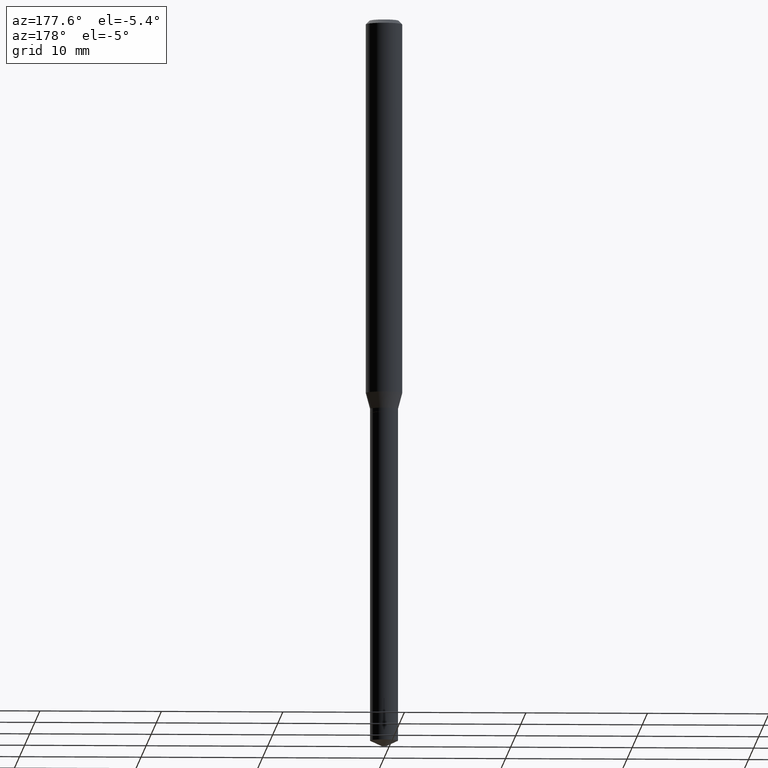
[diagram: clean part render]
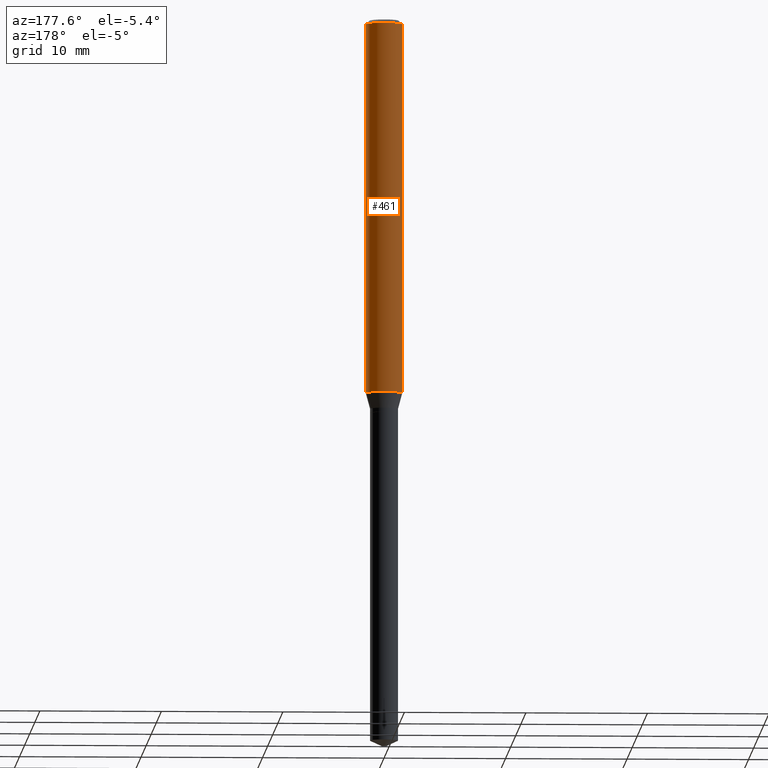
[diagram: same view with one face highlighted and labeled with its STEP entity id]
A machine part, auxiliary view. The second image highlights one B-rep face of the part: STEP entity #461.
In plain terms, the highlighted cylindrical surface (edge-blend (fillet) strip) has radius 1.4999 mm, axis along (-0, 0, 1).
Its self-contained STEP definition (entity closure, byte-faithful):
#1 = EDGE_CURVE ( 'NONE', #240, #176, #251, .T. ) ;
#52 = FACE_OUTER_BOUND ( 'NONE', #465, .T. ) ;
#76 = CARTESIAN_POINT ( 'NONE',  ( 2.888098660104663766E-31, -4.123439461173779647E-17, -0.01181000000000007044 ) ) ;
#85 = CARTESIAN_POINT ( 'NONE',  ( 0.05905000000000007465, -4.123439461173745750E-16, 2.879382386107504074E-30 ) ) ;
#87 = AXIS2_PLACEMENT_3D ( 'NONE', #76, #409, #483 ) ;
#101 = CYLINDRICAL_SURFACE ( 'NONE', #220, 0.05905000000000007465 ) ;
#106 = ORIENTED_EDGE ( 'NONE', *, *, #1, .T. ) ;
#134 = CARTESIAN_POINT ( 'NONE',  ( 0.000000000000000000, 0.000000000000000000, 0.000000000000000000 ) ) ;
#144 = VECTOR ( 'NONE', #191, 39.37007874015748143 ) ;
#146 = EDGE_CURVE ( 'NONE', #167, #240, #367, .T. ) ;
#147 = CARTESIAN_POINT ( 'NONE',  ( -0.05905000000000015098, -3.807506160087890266E-15, -1.210684301395927420 ) ) ;
#151 = CARTESIAN_POINT ( 'NONE',  ( 2.960690693201784593E-29, -4.227081645554230547E-15, -1.210684301395927420 ) ) ;
#167 = VERTEX_POINT ( 'NONE', #403 ) ;
#176 = VERTEX_POINT ( 'NONE', #485 ) ;
#191 = DIRECTION ( 'NONE',  ( -2.445468806185136877E-29, 3.491481338843145188E-15, 1.000000000000000000 ) ) ;
#196 = LINE ( 'NONE', #85, #144 ) ;
#214 = EDGE_CURVE ( 'NONE', #287, #176, #298, .T. ) ;
#220 = AXIS2_PLACEMENT_3D ( 'NONE', #134, #250, #320 ) ;
#237 = AXIS2_PLACEMENT_3D ( 'NONE', #151, #333, #441 ) ;
#240 = VERTEX_POINT ( 'NONE', #147 ) ;
#249 = DIRECTION ( 'NONE',  ( -2.445468806185136877E-29, 3.491481338843145188E-15, 1.000000000000000000 ) ) ;
#250 = DIRECTION ( 'NONE',  ( -2.445468806185136597E-29, 3.491481338843145583E-15, 1.000000000000000000 ) ) ;
#251 = LINE ( 'NONE', #286, #283 ) ;
#283 = VECTOR ( 'NONE', #249, 39.37007874015748143 ) ;
#286 = CARTESIAN_POINT ( 'NONE',  ( -0.05905000000000007465, 4.195754854663396902E-16, -2.904631170795525395E-30 ) ) ;
#287 = VERTEX_POINT ( 'NONE', #305 ) ;
#298 = CIRCLE ( 'NONE', #87, 0.05904999999999999832 ) ;
#305 = CARTESIAN_POINT ( 'NONE',  ( 0.05904999999999999832, -4.535783407291118600E-16, -0.01181000000000007044 ) ) ;
#320 = DIRECTION ( 'NONE',  ( 1.000000000000000000, -6.982962677686266711E-15, 4.876176775795936353E-29 ) ) ;
#324 = ORIENTED_EDGE ( 'NONE', *, *, #146, .T. ) ;
#333 = DIRECTION ( 'NONE',  ( -2.445468806185136597E-29, 3.491481338843145583E-15, 1.000000000000000000 ) ) ;
#358 = EDGE_CURVE ( 'NONE', #167, #287, #196, .T. ) ;
#367 = CIRCLE ( 'NONE', #237, 0.05905000000000015098 ) ;
#403 = CARTESIAN_POINT ( 'NONE',  ( 0.05905000000000015098, -4.639425591671605468E-15, -1.210684301395927420 ) ) ;
#409 = DIRECTION ( 'NONE',  ( -2.445468806185136597E-29, 3.491481338843145583E-15, 1.000000000000000000 ) ) ;
#436 = ORIENTED_EDGE ( 'NONE', *, *, #358, .F. ) ;
#441 = DIRECTION ( 'NONE',  ( 1.000000000000000000, -6.982962677686262766E-15, 0.000000000000000000 ) ) ;
#457 = ORIENTED_EDGE ( 'NONE', *, *, #214, .F. ) ;
#461 = ADVANCED_FACE ( 'NONE', ( #52 ), #101, .T. ) ;
#465 = EDGE_LOOP ( 'NONE', ( #324, #106, #457, #436 ) ) ;
#483 = DIRECTION ( 'NONE',  ( 1.000000000000000000, -6.982962677686266711E-15, 0.000000000000000000 ) ) ;
#485 = CARTESIAN_POINT ( 'NONE',  ( -0.05904999999999999832, -1.714582534616643462E-15, -0.01181000000000007044 ) ) ;